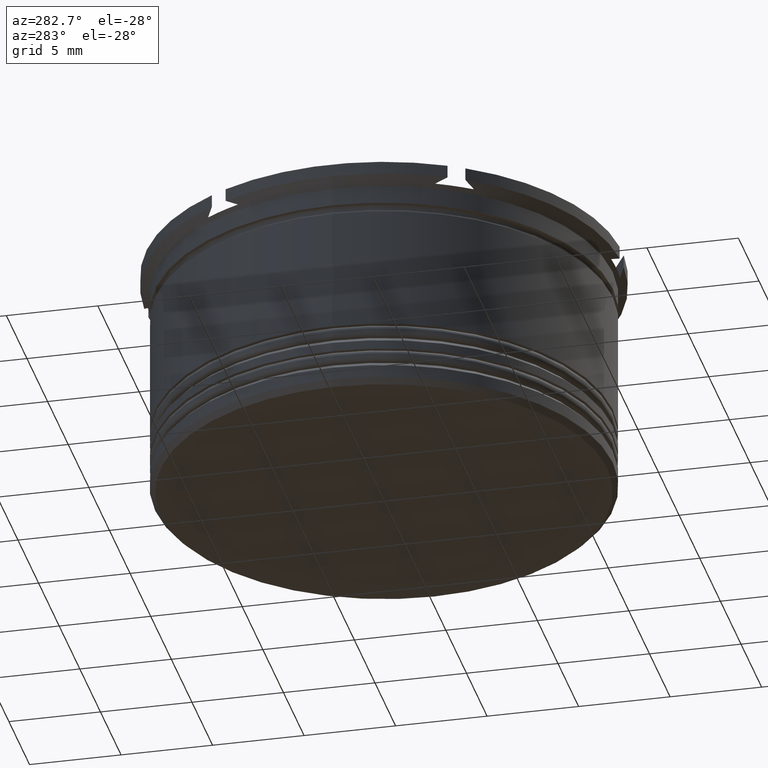
[diagram: clean part render]
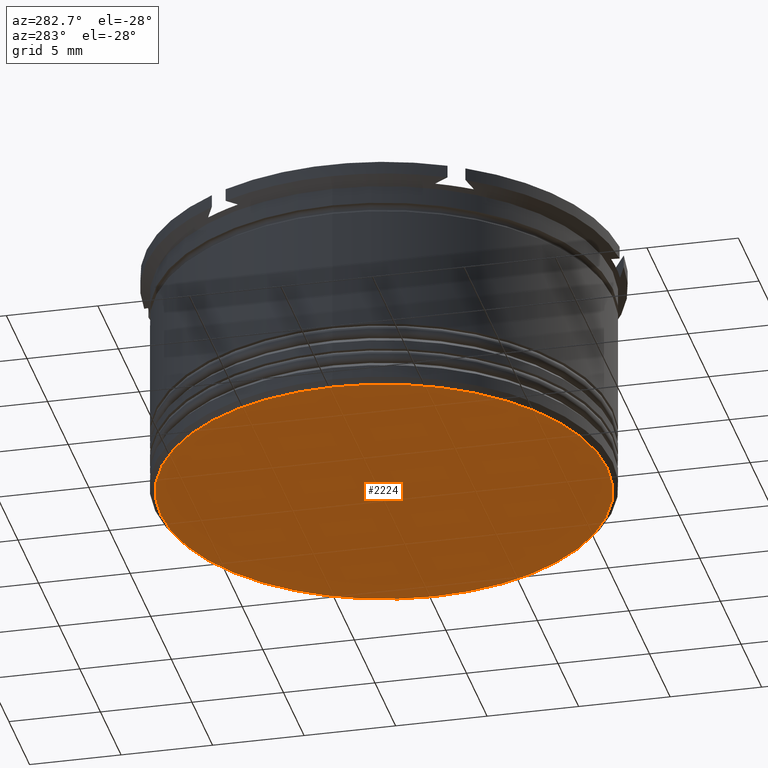
[diagram: same view with one face highlighted and labeled with its STEP entity id]
A machine part, auxiliary view. The second image highlights one B-rep face of the part: STEP entity #2224.
In plain terms, the highlighted planar face has unit normal (0, 0, -1).
Its self-contained STEP definition (entity closure, byte-faithful):
#342 = EDGE_CURVE ( 'NONE', #424, #1966, #792, .T. ) ;
#424 = VERTEX_POINT ( 'NONE', #1962 ) ;
#635 = DIRECTION ( 'NONE',  ( 0.000000000000000000, 0.000000000000000000, -1.000000000000000000 ) ) ;
#792 = CIRCLE ( 'NONE', #1738, 12.20000000000000284 ) ;
#819 = FACE_OUTER_BOUND ( 'NONE', #2217, .T. ) ;
#998 = EDGE_CURVE ( 'NONE', #1966, #424, #1516, .T. ) ;
#1260 = DIRECTION ( 'NONE',  ( -1.000000000000000000, 0.000000000000000000, -0.000000000000000000 ) ) ;
#1401 = DIRECTION ( 'NONE',  ( -1.000000000000000000, 0.000000000000000000, 0.000000000000000000 ) ) ;
#1516 = CIRCLE ( 'NONE', #2255, 12.20000000000000284 ) ;
#1541 = PLANE ( 'NONE',  #1669 ) ;
#1638 = ORIENTED_EDGE ( 'NONE', *, *, #342, .T. ) ;
#1669 = AXIS2_PLACEMENT_3D ( 'NONE', #2280, #635, #1260 ) ;
#1738 = AXIS2_PLACEMENT_3D ( 'NONE', #2315, #1944, #1401 ) ;
#1754 = DIRECTION ( 'NONE',  ( -1.000000000000000000, 0.000000000000000000, 0.000000000000000000 ) ) ;
#1767 = CARTESIAN_POINT ( 'NONE',  ( 0.000000000000000000, 0.000000000000000000, -13.00000000000000178 ) ) ;
#1944 = DIRECTION ( 'NONE',  ( 0.000000000000000000, 0.000000000000000000, -1.000000000000000000 ) ) ;
#1962 = CARTESIAN_POINT ( 'NONE',  ( 12.20000000000000284, 0.000000000000000000, -13.00000000000000178 ) ) ;
#1966 = VERTEX_POINT ( 'NONE', #2219 ) ;
#2123 = DIRECTION ( 'NONE',  ( 0.000000000000000000, 0.000000000000000000, -1.000000000000000000 ) ) ;
#2217 = EDGE_LOOP ( 'NONE', ( #1638, #2374 ) ) ;
#2219 = CARTESIAN_POINT ( 'NONE',  ( -12.20000000000000284, 1.512438796946981486E-15, -13.00000000000000178 ) ) ;
#2224 = ADVANCED_FACE ( 'NONE', ( #819 ), #1541, .T. ) ;
#2255 = AXIS2_PLACEMENT_3D ( 'NONE', #1767, #2123, #1754 ) ;
#2280 = CARTESIAN_POINT ( 'NONE',  ( 0.000000000000000000, 12.50000000000000000, -13.00000000000000178 ) ) ;
#2315 = CARTESIAN_POINT ( 'NONE',  ( 0.000000000000000000, 0.000000000000000000, -13.00000000000000178 ) ) ;
#2374 = ORIENTED_EDGE ( 'NONE', *, *, #998, .T. ) ;